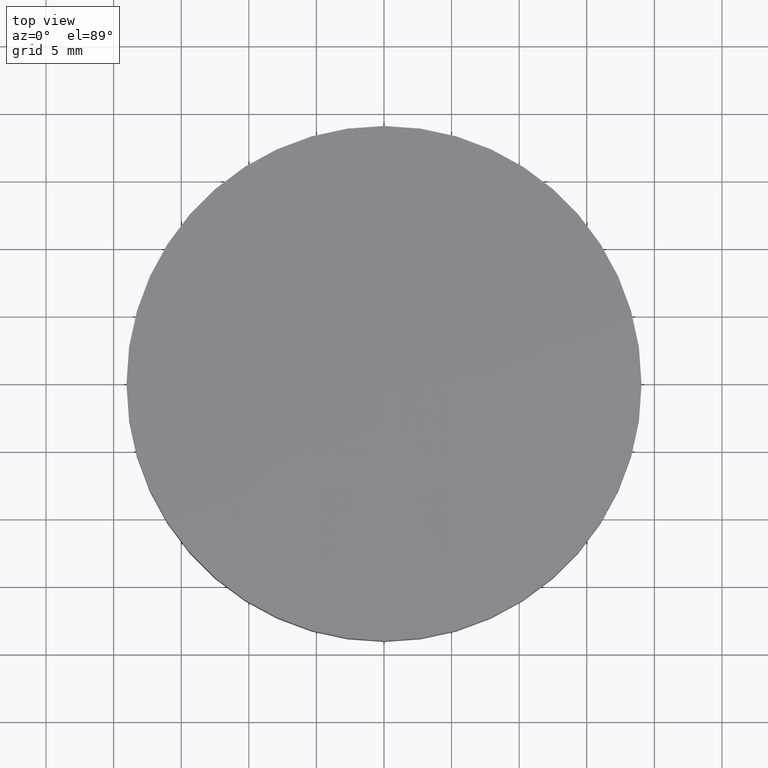
[diagram: clean part render]
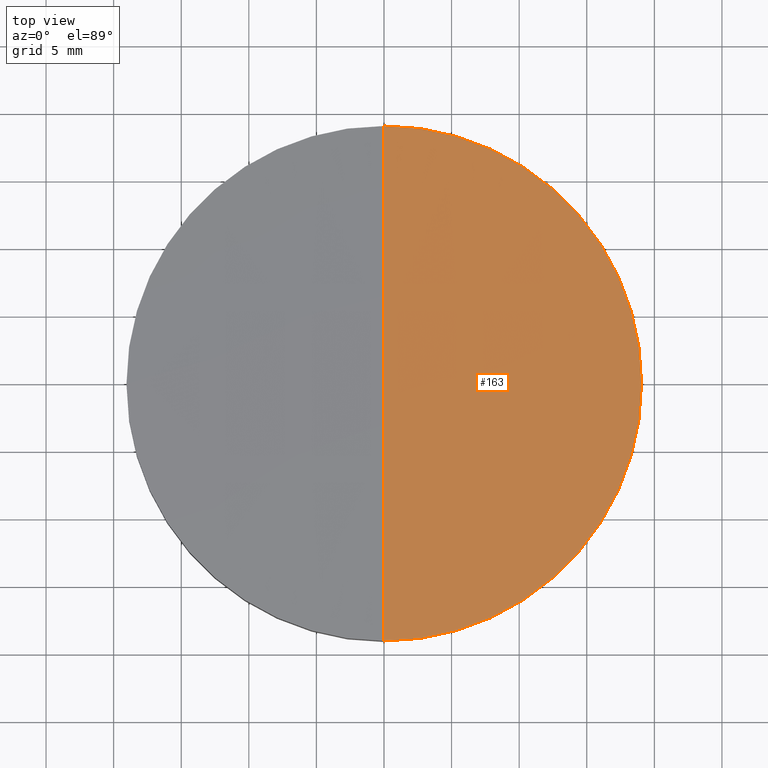
[diagram: same view with one face highlighted and labeled with its STEP entity id]
A machine part, top view. The second image highlights one B-rep face of the part: STEP entity #163.
In plain terms, the highlighted face is a freeform B-spline surface patch.
Its self-contained STEP definition (entity closure, byte-faithful):
#6 = CARTESIAN_POINT ( 'NONE',  ( 19.16539115749171500, -6.426931750395551600, 4.882637590654588200 ) ) ;
#9 = CARTESIAN_POINT ( 'NONE',  ( 6.388918343689373300, -6.426931750395552500, 5.059745798270014900 ) ) ;
#18 = CARTESIAN_POINT ( 'NONE',  ( 19.16097500826495200, 19.27857381669848300, 4.643715858214436700 ) ) ;
#20 =( BOUNDED_SURFACE ( )  B_SPLINE_SURFACE ( 3, 3, ( 
 ( #32, #215, #217, #263 ),
 ( #6, #90, #9, #178 ),
 ( #219, #181, #96, #71 ),
 ( #18, #247, #162, #120 ) ),
 .UNSPECIFIED., .F., .F., .F. ) 
 B_SPLINE_SURFACE_WITH_KNOTS ( ( 4, 4 ),
 ( 4, 4 ),
 ( 0.0000000000000000000, 1.000000000000000000 ),
 ( 0.0000000000000000000, 1.000000000000000000 ),
 .UNSPECIFIED. ) 
 GEOMETRIC_REPRESENTATION_ITEM ( )  RATIONAL_B_SPLINE_SURFACE ( (
 ( 1.000000000000000000, 0.9999715361965574300, 0.9999715361965574300, 1.000000000000000000),
 ( 0.9998847851211856200, 0.9998563245971967600, 0.9998563245971967600, 0.9998847851211856200),
 ( 0.9998847851211856200, 0.9998563245971967600, 0.9998563245971967600, 0.9998847851211856200),
 ( 1.000000000000000000, 0.9999715361965574300, 0.9999715361965574300, 1.000000000000000000) ) ) 
 REPRESENTATION_ITEM ( '' )  SURFACE ( )  );
#22 = DIRECTION ( 'NONE',  ( 1.000000000000000000, 0.0000000000000000000, 0.0000000000000000000 ) ) ;
#32 = CARTESIAN_POINT ( 'NONE',  ( 19.16097500826495200, -19.27857381669841500, 4.643715858214436700 ) ) ;
#36 = VERTEX_POINT ( 'NONE', #189 ) ;
#41 = EDGE_LOOP ( 'NONE', ( #205, #262, #145 ) ) ;
#46 = DIRECTION ( 'NONE',  ( -1.000000000000000000, 0.0000000000000000000, 0.0000000000000000000 ) ) ;
#47 = CARTESIAN_POINT ( 'NONE',  ( -4.656161696687986400E-015, -8.881784197001250400E-016, 4.825008137824579700 ) ) ;
#54 = CARTESIAN_POINT ( 'NONE',  ( -3.410605131648479900E-013, -19.04999999999755300, 4.825008137824537100 ) ) ;
#62 = FACE_OUTER_BOUND ( 'NONE', #41, .T. ) ;
#68 = VERTEX_POINT ( 'NONE', #54 ) ;
#71 = CARTESIAN_POINT ( 'NONE',  ( -8.673617379884035500E-014, 6.426931750395621800, 5.059745798270014900 ) ) ;
#75 = DIRECTION ( 'NONE',  ( 1.000000000000000000, 0.0000000000000000000, 0.0000000000000000000 ) ) ;
#85 = AXIS2_PLACEMENT_3D ( 'NONE', #198, #46, #290 ) ;
#90 = CARTESIAN_POINT ( 'NONE',  ( 12.77756390800491600, -6.426931750395552500, 5.000708048625968500 ) ) ;
#96 = CARTESIAN_POINT ( 'NONE',  ( 6.388918343689373300, 6.426931750395622700, 5.059745798270014000 ) ) ;
#100 = DIRECTION ( 'NONE',  ( -1.456985596620939900E-018, -6.792982492034799900E-035, -1.000000000000000000 ) ) ;
#101 = AXIS2_PLACEMENT_3D ( 'NONE', #269, #210, #75 ) ;
#110 = VERTEX_POINT ( 'NONE', #216 ) ;
#118 = CIRCLE ( 'NONE', #85, 1037.000000000000000 ) ;
#120 = CARTESIAN_POINT ( 'NONE',  ( -8.673617379884035500E-014, 19.27857381669848300, 4.820783256004086900 ) ) ;
#145 = ORIENTED_EDGE ( 'NONE', *, *, #284, .F. ) ;
#162 = CARTESIAN_POINT ( 'NONE',  ( 6.387446189191116700, 19.27857381669847600, 4.820783256004084200 ) ) ;
#163 = ADVANCED_FACE ( 'NONE', ( #62 ), #20, .T. ) ;
#165 = CIRCLE ( 'NONE', #101, 19.05000000000000100 ) ;
#166 = EDGE_CURVE ( 'NONE', #68, #110, #118, .T. ) ;
#178 = CARTESIAN_POINT ( 'NONE',  ( -8.673617379884035500E-014, -6.426931750395551600, 5.059745798270016700 ) ) ;
#181 = CARTESIAN_POINT ( 'NONE',  ( 12.77756390800491600, 6.426931750395622700, 5.000708048625966700 ) ) ;
#189 = CARTESIAN_POINT ( 'NONE',  ( 19.04999999999999700, -8.881784197001250400E-016, 4.825008137824579700 ) ) ;
#198 = CARTESIAN_POINT ( 'NONE',  ( -3.410605131648479900E-013, 1.136868377216160000E-013, -1032.000000000000000 ) ) ;
#205 = ORIENTED_EDGE ( 'NONE', *, *, #166, .F. ) ;
#210 = DIRECTION ( 'NONE',  ( -1.456985596620939900E-018, -6.792982492034799900E-035, -1.000000000000000000 ) ) ;
#214 = AXIS2_PLACEMENT_3D ( 'NONE', #47, #100, #22 ) ;
#215 = CARTESIAN_POINT ( 'NONE',  ( 12.77461966186307600, -19.27857381669840800, 4.761759110022509800 ) ) ;
#216 = CARTESIAN_POINT ( 'NONE',  ( -3.410605131648479900E-013, 19.04999999999766700, 4.825008137824537100 ) ) ;
#217 = CARTESIAN_POINT ( 'NONE',  ( 6.387446189191116700, -19.27857381669840800, 4.820783256004084200 ) ) ;
#219 = CARTESIAN_POINT ( 'NONE',  ( 19.16539115749171500, 6.426931750395621800, 4.882637590654586500 ) ) ;
#247 = CARTESIAN_POINT ( 'NONE',  ( 12.77461966186307600, 19.27857381669847600, 4.761759110022509800 ) ) ;
#262 = ORIENTED_EDGE ( 'NONE', *, *, #285, .F. ) ;
#263 = CARTESIAN_POINT ( 'NONE',  ( -8.673617379884035500E-014, -19.27857381669841500, 4.820783256004086900 ) ) ;
#269 = CARTESIAN_POINT ( 'NONE',  ( -4.656161696687986400E-015, -8.881784197001250400E-016, 4.825008137824579700 ) ) ;
#278 = CIRCLE ( 'NONE', #214, 19.05000000000000100 ) ;
#284 = EDGE_CURVE ( 'NONE', #110, #36, #278, .T. ) ;
#285 = EDGE_CURVE ( 'NONE', #36, #68, #165, .T. ) ;
#290 = DIRECTION ( 'NONE',  ( 0.0000000000000000000, -1.000000000000000000, 4.282441753616804200E-016 ) ) ;